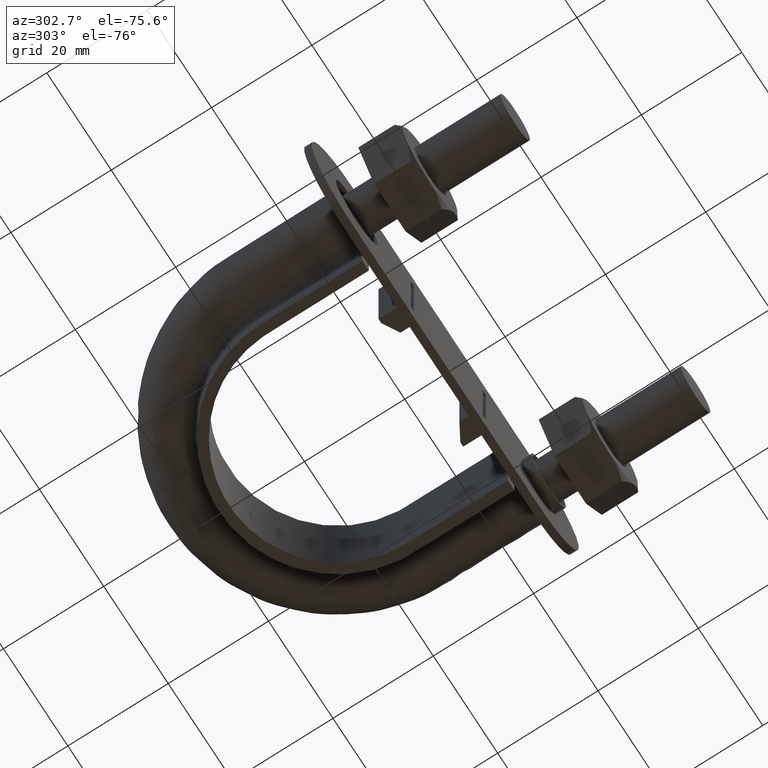
[diagram: clean part render]
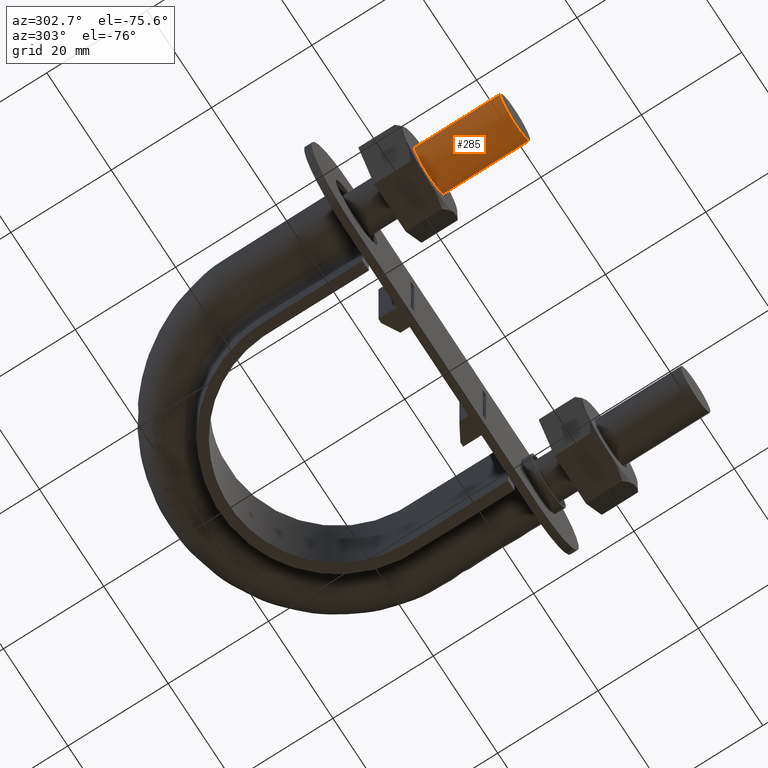
[diagram: same view with one face highlighted and labeled with its STEP entity id]
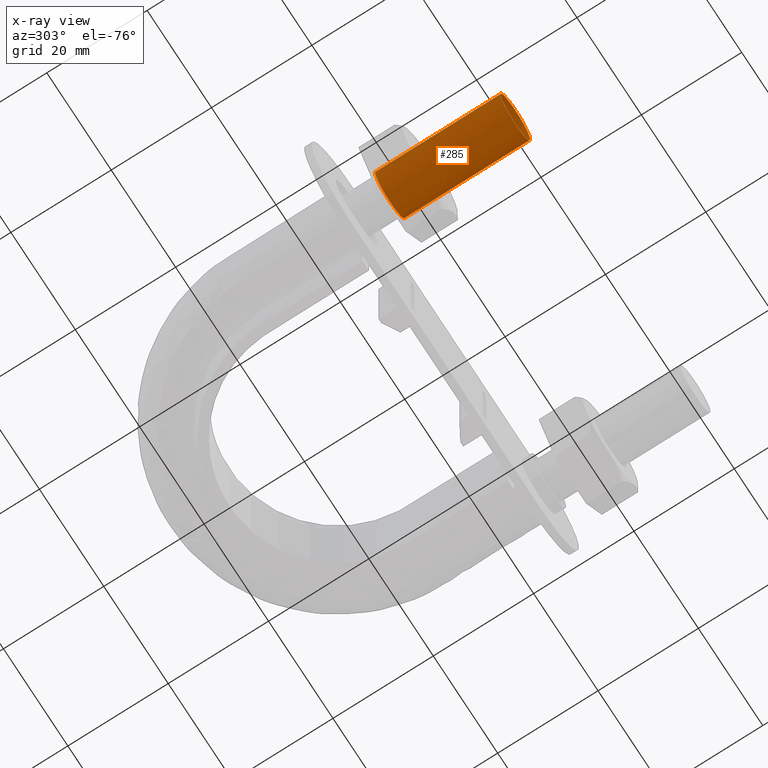
[diagram: x-ray of the same camera — body ghosted, the highlighted face saturated]
A machine part, auxiliary view. The second image highlights one B-rep face of the part: STEP entity #285.
The next image is the same camera in x-ray: the body ghosted, the highlighted face saturated — about 0% of this face is hidden behind the body in this view.
In plain terms, the highlighted cylindrical surface (bore or boss wall) has radius 4.6 mm, axis along (-0, -1, -0).
Its self-contained STEP definition (entity closure, byte-faithful):
#285 = ADVANCED_FACE( '', ( #422, #423 ), #424, .T. );
#422 = FACE_OUTER_BOUND( '', #1500, .T. );
#423 = FACE_OUTER_BOUND( '', #1501, .T. );
#424 = CYLINDRICAL_SURFACE( '', #1502, 4.60000000000000 );
#1500 = EDGE_LOOP( '', ( #1844 ) );
#1501 = EDGE_LOOP( '', ( #1845 ) );
#1502 = AXIS2_PLACEMENT_3D( '', #1846, #1847, #1848 );
#1844 = ORIENTED_EDGE( '', *, *, #2563, .F. );
#1845 = ORIENTED_EDGE( '', *, *, #2564, .T. );
#1846 = CARTESIAN_POINT( '', ( -28.0000000000000, 25.0000000000000, 1.51238884697064E-015 ) );
#1847 = DIRECTION( '', ( -2.44921270764475E-016, -1.00000000000000, -6.12303176911189E-017 ) );
#1848 = DIRECTION( '', ( 1.00000000000000, -2.44921270764475E-016, -7.49830360911069E-033 ) );
#2563 = EDGE_CURVE( '', #2825, #2825, #2826, .T. );
#2564 = EDGE_CURVE( '', #2827, #2827, #2828, .T. );
#2825 = VERTEX_POINT( '', #3456 );
#2826 = CIRCLE( '', #3457, 4.60000000000000 );
#2827 = VERTEX_POINT( '', #3458 );
#2828 = CIRCLE( '', #3459, 4.60000000000000 );
#3456 = CARTESIAN_POINT( '', ( -23.4000000000000, 5.73115773588873E-015, -1.83690953073355E-017 ) );
#3457 = AXIS2_PLACEMENT_3D( '', #4056, #4057, #4058 );
#3458 = CARTESIAN_POINT( '', ( -23.4000000000000, 25.0000000000000, 1.51238884697064E-015 ) );
#3459 = AXIS2_PLACEMENT_3D( '', #4059, #4060, #4061 );
#4056 = CARTESIAN_POINT( '', ( -28.0000000000000, 6.85779558140531E-015, -1.83690953073355E-017 ) );
#4057 = DIRECTION( '', ( -2.44921270764475E-016, -1.00000000000000, -6.12303176911189E-017 ) );
#4058 = DIRECTION( '', ( 1.00000000000000, -2.44921270764475E-016, -6.84411544865306E-033 ) );
#4059 = CARTESIAN_POINT( '', ( -28.0000000000000, 25.0000000000000, 1.51238884697064E-015 ) );
#4060 = DIRECTION( '', ( -2.44921270764475E-016, -1.00000000000000, -6.12303176911189E-017 ) );
#4061 = DIRECTION( '', ( 1.00000000000000, -2.44921270764475E-016, -6.84411544865306E-033 ) );